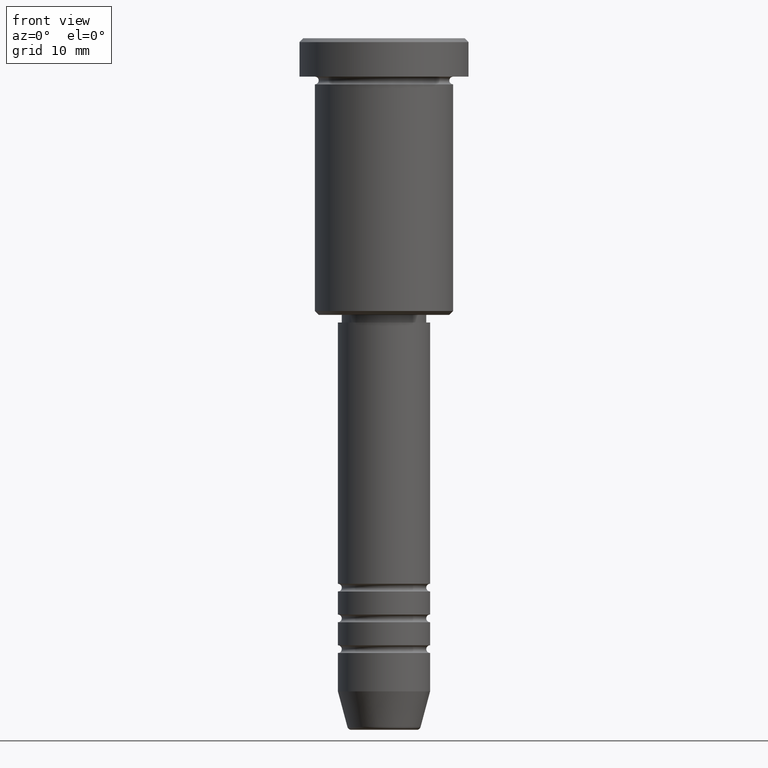
[diagram: clean part render]
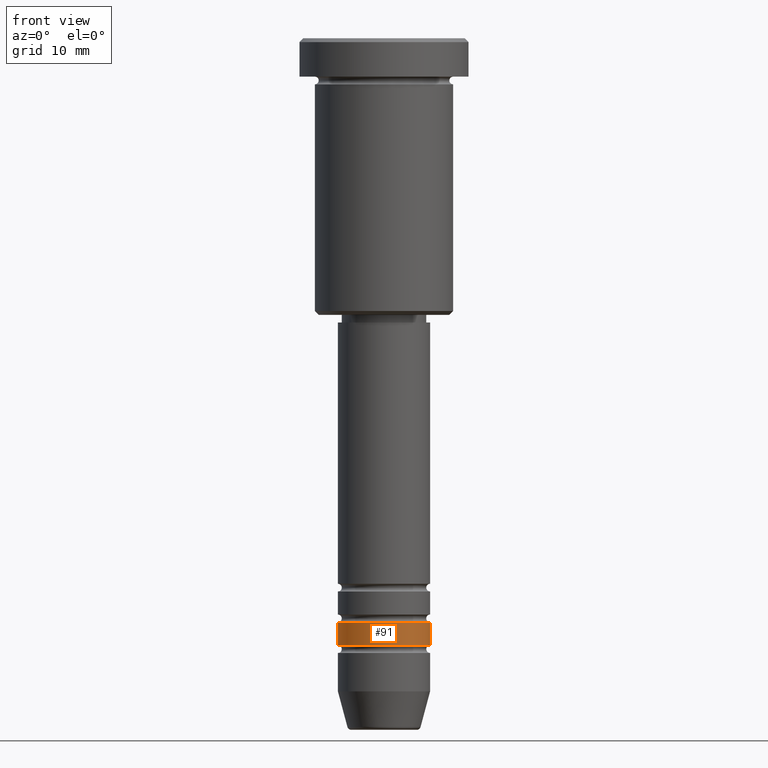
[diagram: same view with one face highlighted and labeled with its STEP entity id]
A machine part, front view. The second image highlights one B-rep face of the part: STEP entity #91.
In plain terms, the highlighted cylindrical surface (partial cylindrical patch) has radius 6 mm, axis along (-0, -0, 1).
Its self-contained STEP definition (entity closure, byte-faithful):
#42 = CARTESIAN_POINT ( 'NONE',  ( 5.999999999999999112, 0.000000000000000000, -75.99999999999998579 ) ) ;
#91 = ADVANCED_FACE ( 'NONE', ( #797 ), #1182, .T. ) ;
#125 = CIRCLE ( 'NONE', #777, 6.000000000000000000 ) ;
#135 = EDGE_CURVE ( 'NONE', #480, #423, #1026, .T. ) ;
#172 = CARTESIAN_POINT ( 'NONE',  ( 0.000000000000000000, 0.000000000000000000, 0.000000000000000000 ) ) ;
#175 = EDGE_LOOP ( 'NONE', ( #249, #474, #1078, #1167 ) ) ;
#249 = ORIENTED_EDGE ( 'NONE', *, *, #363, .F. ) ;
#278 = AXIS2_PLACEMENT_3D ( 'NONE', #543, #344, #988 ) ;
#279 = EDGE_CURVE ( 'NONE', #1036, #423, #573, .T. ) ;
#344 = DIRECTION ( 'NONE',  ( -0.000000000000000000, -0.000000000000000000, 1.000000000000000000 ) ) ;
#348 = CARTESIAN_POINT ( 'NONE',  ( -5.999999999999999112, 7.347880794884118750E-16, -75.99999999999998579 ) ) ;
#363 = EDGE_CURVE ( 'NONE', #636, #480, #1147, .T. ) ;
#392 = VECTOR ( 'NONE', #871, 1000.000000000000000 ) ;
#423 = VERTEX_POINT ( 'NONE', #42 ) ;
#474 = ORIENTED_EDGE ( 'NONE', *, *, #1072, .T. ) ;
#480 = VERTEX_POINT ( 'NONE', #348 ) ;
#510 = CARTESIAN_POINT ( 'NONE',  ( 6.000000000000000000, 0.000000000000000000, -78.99999999999997158 ) ) ;
#543 = CARTESIAN_POINT ( 'NONE',  ( 0.000000000000000000, 0.000000000000000000, -75.99999999999998579 ) ) ;
#573 = LINE ( 'NONE', #943, #673 ) ;
#636 = VERTEX_POINT ( 'NONE', #1028 ) ;
#673 = VECTOR ( 'NONE', #1131, 1000.000000000000000 ) ;
#777 = AXIS2_PLACEMENT_3D ( 'NONE', #781, #793, #1068 ) ;
#781 = CARTESIAN_POINT ( 'NONE',  ( 0.000000000000000000, 0.000000000000000000, -78.99999999999997158 ) ) ;
#793 = DIRECTION ( 'NONE',  ( -0.000000000000000000, -0.000000000000000000, 1.000000000000000000 ) ) ;
#797 = FACE_OUTER_BOUND ( 'NONE', #175, .T. ) ;
#871 = DIRECTION ( 'NONE',  ( -0.000000000000000000, -0.000000000000000000, 1.000000000000000000 ) ) ;
#905 = DIRECTION ( 'NONE',  ( -0.000000000000000000, -0.000000000000000000, 1.000000000000000000 ) ) ;
#910 = AXIS2_PLACEMENT_3D ( 'NONE', #172, #905, #1082 ) ;
#943 = CARTESIAN_POINT ( 'NONE',  ( 6.000000000000000000, 0.000000000000000000, 0.000000000000000000 ) ) ;
#961 = CARTESIAN_POINT ( 'NONE',  ( -6.000000000000000000, 7.347880794884119736E-16, 0.000000000000000000 ) ) ;
#988 = DIRECTION ( 'NONE',  ( 1.000000000000000000, 0.000000000000000000, 0.000000000000000000 ) ) ;
#1026 = CIRCLE ( 'NONE', #278, 5.999999999999999112 ) ;
#1028 = CARTESIAN_POINT ( 'NONE',  ( -6.000000000000000000, 7.347880794884119736E-16, -78.99999999999997158 ) ) ;
#1036 = VERTEX_POINT ( 'NONE', #510 ) ;
#1068 = DIRECTION ( 'NONE',  ( 1.000000000000000000, 0.000000000000000000, 0.000000000000000000 ) ) ;
#1072 = EDGE_CURVE ( 'NONE', #636, #1036, #125, .T. ) ;
#1078 = ORIENTED_EDGE ( 'NONE', *, *, #279, .T. ) ;
#1082 = DIRECTION ( 'NONE',  ( 1.000000000000000000, 0.000000000000000000, 0.000000000000000000 ) ) ;
#1131 = DIRECTION ( 'NONE',  ( -0.000000000000000000, -0.000000000000000000, 1.000000000000000000 ) ) ;
#1147 = LINE ( 'NONE', #961, #392 ) ;
#1167 = ORIENTED_EDGE ( 'NONE', *, *, #135, .F. ) ;
#1182 = CYLINDRICAL_SURFACE ( 'NONE', #910, 6.000000000000000000 ) ;